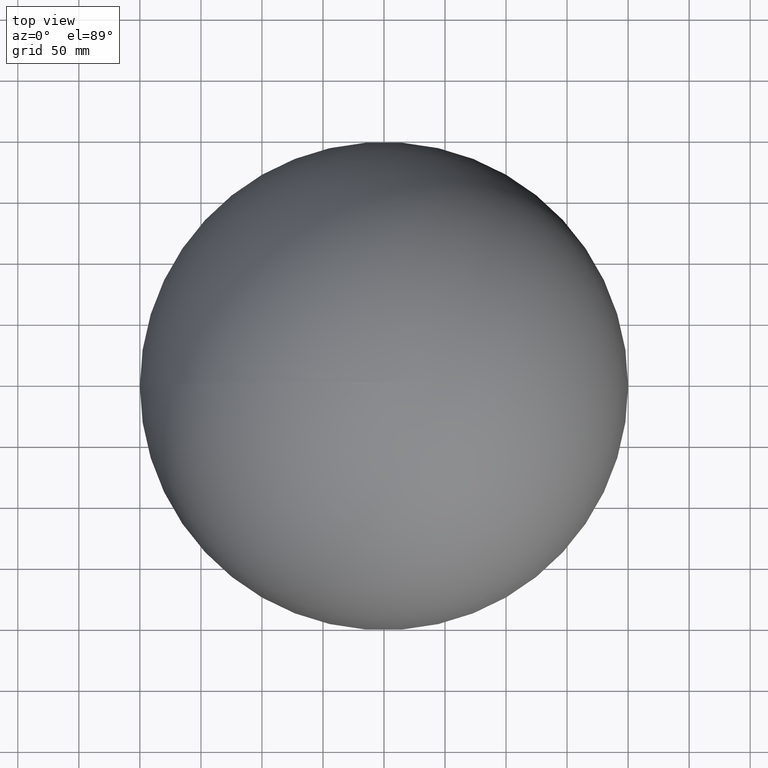
[diagram: clean part render]
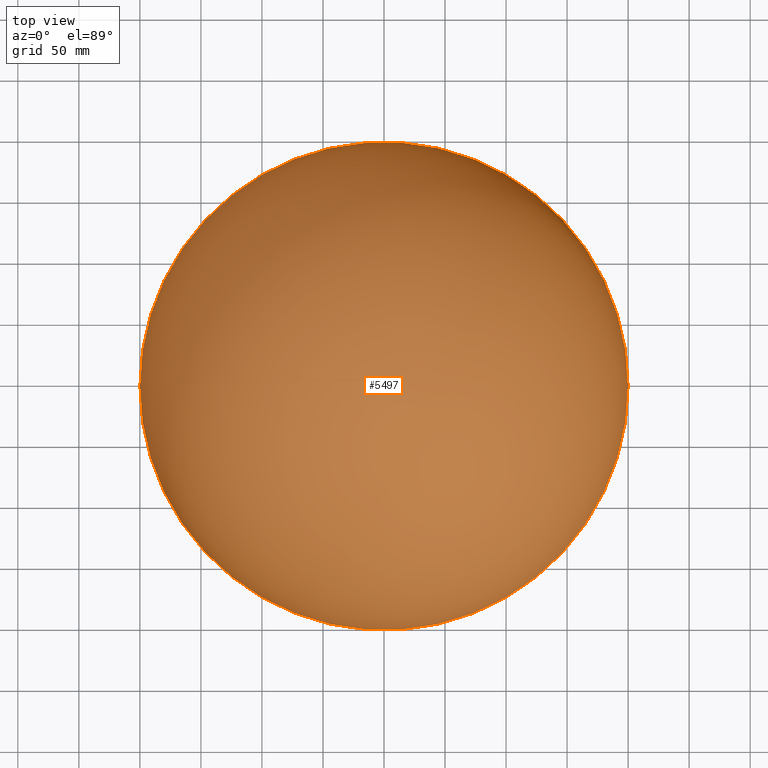
[diagram: same view with one face highlighted and labeled with its STEP entity id]
A machine part, top view. The second image highlights one B-rep face of the part: STEP entity #5497.
In plain terms, the highlighted spherical surface has radius 200 mm.
Its self-contained STEP definition (entity closure, byte-faithful):
#19 = DIRECTION ( 'NONE',  ( -1.000000000000000000, 0.000000000000000000, -6.982962677686266711E-15 ) ) ;
#1187 = EDGE_CURVE ( 'NONE', #6607, #1246, #1269, .T. ) ;
#1246 = VERTEX_POINT ( 'NONE', #7050 ) ;
#1269 = CIRCLE ( 'NONE', #9059, 200.0000000000000000 ) ;
#1668 = CARTESIAN_POINT ( 'NONE',  ( -200.0000000000000000, 0.000000000000000000, -1.396592535537253342E-12 ) ) ;
#1684 = FACE_OUTER_BOUND ( 'NONE', #8649, .T. ) ;
#3484 = DIRECTION ( 'NONE',  ( -1.000000000000000000, 0.000000000000000000, -6.982962677686266711E-15 ) ) ;
#3540 = DIRECTION ( 'NONE',  ( -6.982962677686266711E-15, 0.000000000000000000, 1.000000000000000000 ) ) ;
#3621 = CARTESIAN_POINT ( 'NONE',  ( 0.000000000000000000, 0.000000000000000000, 0.000000000000000000 ) ) ;
#4875 = CIRCLE ( 'NONE', #5784, 200.0000000000000000 ) ;
#5088 = ORIENTED_EDGE ( 'NONE', *, *, #6931, .F. ) ;
#5497 = ADVANCED_FACE ( 'NONE', ( #1684 ), #7055, .T. ) ;
#5784 = AXIS2_PLACEMENT_3D ( 'NONE', #3621, #8916, #5819 ) ;
#5819 = DIRECTION ( 'NONE',  ( -1.000000000000000000, 0.000000000000000000, -6.982962677686266711E-15 ) ) ;
#6607 = VERTEX_POINT ( 'NONE', #1668 ) ;
#6931 = EDGE_CURVE ( 'NONE', #1246, #6607, #4875, .T. ) ;
#7050 = CARTESIAN_POINT ( 'NONE',  ( 200.0000000000000000, 2.449293598294706434E-14, 1.396592535537253342E-12 ) ) ;
#7055 = SPHERICAL_SURFACE ( 'NONE', #7449, 200.0000000000000000 ) ;
#7244 = ORIENTED_EDGE ( 'NONE', *, *, #1187, .F. ) ;
#7449 = AXIS2_PLACEMENT_3D ( 'NONE', #8089, #3540, #3484 ) ;
#8089 = CARTESIAN_POINT ( 'NONE',  ( 0.000000000000000000, 0.000000000000000000, 0.000000000000000000 ) ) ;
#8307 = DIRECTION ( 'NONE',  ( 6.982962677686266711E-15, 0.000000000000000000, -1.000000000000000000 ) ) ;
#8649 = EDGE_LOOP ( 'NONE', ( #7244, #5088 ) ) ;
#8916 = DIRECTION ( 'NONE',  ( 6.982962677686266711E-15, 0.000000000000000000, -1.000000000000000000 ) ) ;
#9059 = AXIS2_PLACEMENT_3D ( 'NONE', #9823, #8307, #19 ) ;
#9823 = CARTESIAN_POINT ( 'NONE',  ( 0.000000000000000000, 0.000000000000000000, 0.000000000000000000 ) ) ;